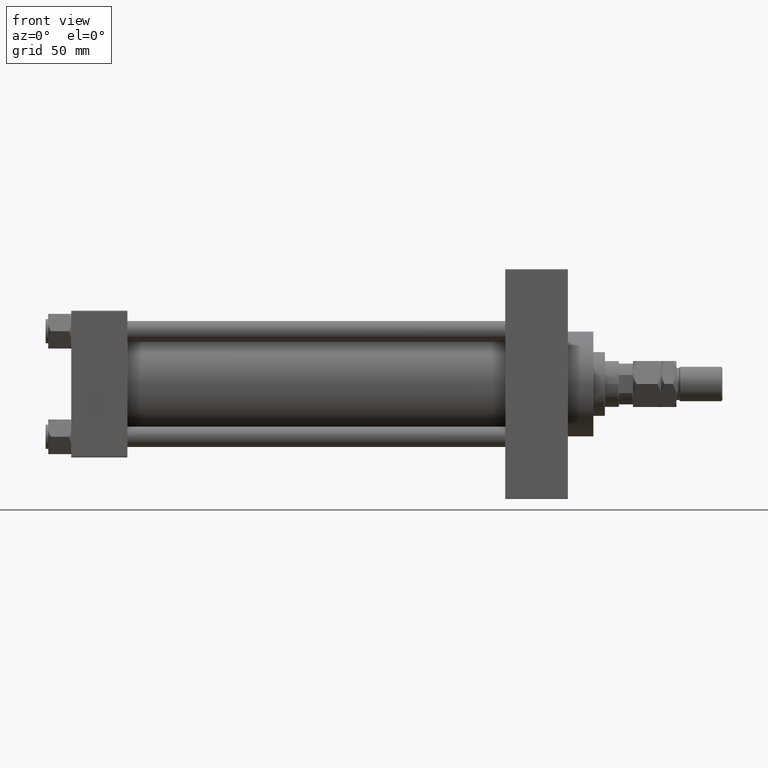
[diagram: clean part render]
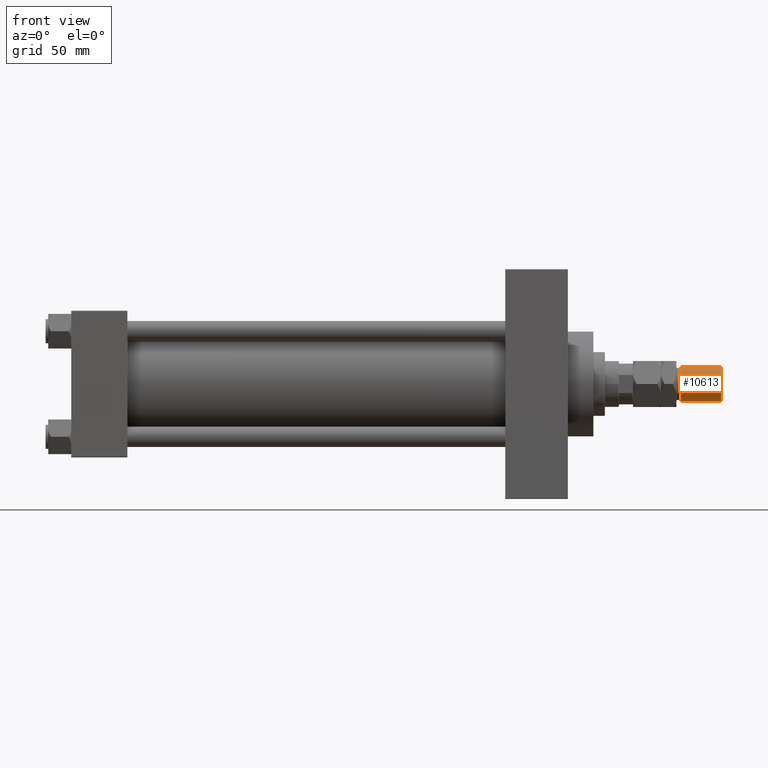
[diagram: same view with one face highlighted and labeled with its STEP entity id]
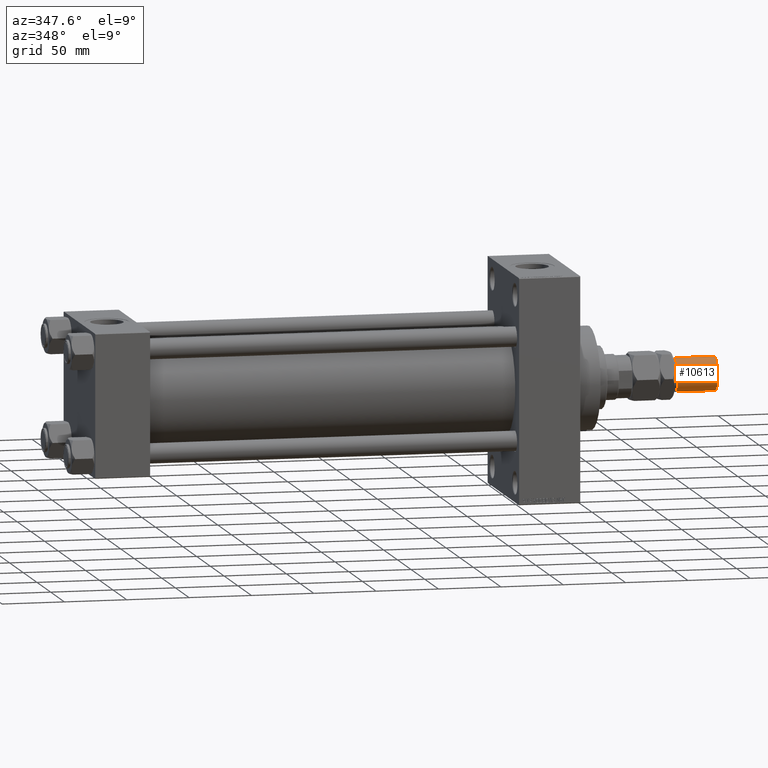
[diagram: same view with one face highlighted and labeled with its STEP entity id]
A machine part, front view. The second image highlights one B-rep face of the part: STEP entity #10613.
A second angle (auxiliary view) of the same face is appended — the face is thin or edge-on in the first view.
In plain terms, the highlighted cylindrical surface (edge-blend (fillet) strip) has radius 13.5 mm, axis along (-1, -0, 0).
Its self-contained STEP definition (entity closure, byte-faithful):
#1763 = CYLINDRICAL_SURFACE ( 'NONE', #41115, 13.50000000000000000 ) ;
#2482 = VERTEX_POINT ( 'NONE', #6711 ) ;
#4375 = DIRECTION ( 'NONE',  ( 0.000000000000000000, 0.000000000000000000, -1.000000000000000000 ) ) ;
#5154 = CARTESIAN_POINT ( 'NONE',  ( 0.000000000000000000, 0.000000000000000000, 37.00000000000000000 ) ) ;
#5469 = EDGE_CURVE ( 'NONE', #17069, #50747, #25973, .T. ) ;
#6192 = DIRECTION ( 'NONE',  ( -1.000000000000000000, 0.000000000000000000, 0.000000000000000000 ) ) ;
#6711 = CARTESIAN_POINT ( 'NONE',  ( 13.50000000000000000, 1.653273178848926867E-15, 37.00000000000000000 ) ) ;
#10613 = ADVANCED_FACE ( 'NONE', ( #26053 ), #1763, .T. ) ;
#10709 = ORIENTED_EDGE ( 'NONE', *, *, #20753, .T. ) ;
#15173 = CARTESIAN_POINT ( 'NONE',  ( 13.50000000000000000, 1.653273178848926867E-15, 70.00000000000000000 ) ) ;
#17069 = VERTEX_POINT ( 'NONE', #41428 ) ;
#17949 = DIRECTION ( 'NONE',  ( -0.000000000000000000, -0.000000000000000000, -1.000000000000000000 ) ) ;
#18820 = CIRCLE ( 'NONE', #43835, 13.50000000000000000 ) ;
#20753 = EDGE_CURVE ( 'NONE', #32698, #17069, #23945, .T. ) ;
#21274 = EDGE_CURVE ( 'NONE', #32698, #2482, #51452, .T. ) ;
#23945 = CIRCLE ( 'NONE', #24765, 13.50000000000000000 ) ;
#24765 = AXIS2_PLACEMENT_3D ( 'NONE', #40161, #4375, #40414 ) ;
#25973 = LINE ( 'NONE', #45304, #35091 ) ;
#26053 = FACE_OUTER_BOUND ( 'NONE', #32086, .T. ) ;
#26270 = ORIENTED_EDGE ( 'NONE', *, *, #39258, .T. ) ;
#26459 = VECTOR ( 'NONE', #35042, 1000.000000000000000 ) ;
#28409 = DIRECTION ( 'NONE',  ( 1.000000000000000000, 0.000000000000000000, 0.000000000000000000 ) ) ;
#29723 = CARTESIAN_POINT ( 'NONE',  ( 0.000000000000000000, 0.000000000000000000, 70.00000000000000000 ) ) ;
#32086 = EDGE_LOOP ( 'NONE', ( #47864, #10709, #35135, #26270 ) ) ;
#32698 = VERTEX_POINT ( 'NONE', #40265 ) ;
#33295 = CARTESIAN_POINT ( 'NONE',  ( -13.50000000000000000, 0.000000000000000000, 37.00000000000000000 ) ) ;
#35042 = DIRECTION ( 'NONE',  ( -0.000000000000000000, -0.000000000000000000, -1.000000000000000000 ) ) ;
#35091 = VECTOR ( 'NONE', #49964, 1000.000000000000000 ) ;
#35135 = ORIENTED_EDGE ( 'NONE', *, *, #5469, .T. ) ;
#39258 = EDGE_CURVE ( 'NONE', #50747, #2482, #18820, .T. ) ;
#40161 = CARTESIAN_POINT ( 'NONE',  ( 0.000000000000000000, 0.000000000000000000, 68.99999999999998579 ) ) ;
#40265 = CARTESIAN_POINT ( 'NONE',  ( 13.50000000000000000, 1.653273178848926867E-15, 68.99999999999998579 ) ) ;
#40414 = DIRECTION ( 'NONE',  ( 1.000000000000000000, 0.000000000000000000, 0.000000000000000000 ) ) ;
#41115 = AXIS2_PLACEMENT_3D ( 'NONE', #29723, #17949, #6192 ) ;
#41428 = CARTESIAN_POINT ( 'NONE',  ( -13.50000000000000000, 0.000000000000000000, 68.99999999999998579 ) ) ;
#43835 = AXIS2_PLACEMENT_3D ( 'NONE', #5154, #48228, #28409 ) ;
#45304 = CARTESIAN_POINT ( 'NONE',  ( -13.50000000000000000, 0.000000000000000000, 70.00000000000000000 ) ) ;
#47864 = ORIENTED_EDGE ( 'NONE', *, *, #21274, .F. ) ;
#48228 = DIRECTION ( 'NONE',  ( -0.000000000000000000, -0.000000000000000000, 1.000000000000000000 ) ) ;
#49964 = DIRECTION ( 'NONE',  ( -0.000000000000000000, -0.000000000000000000, -1.000000000000000000 ) ) ;
#50747 = VERTEX_POINT ( 'NONE', #33295 ) ;
#51452 = LINE ( 'NONE', #15173, #26459 ) ;